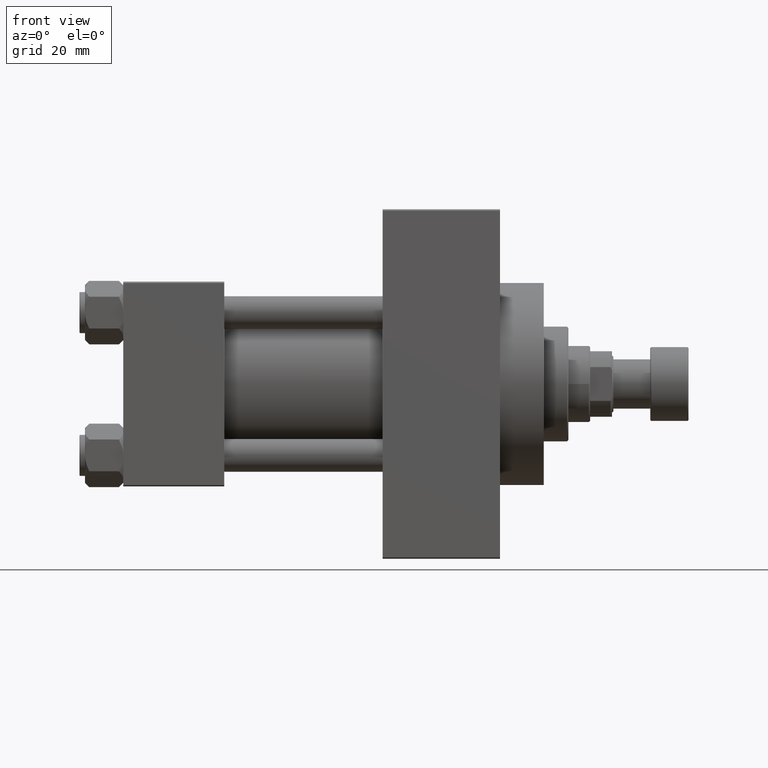
[diagram: clean part render]
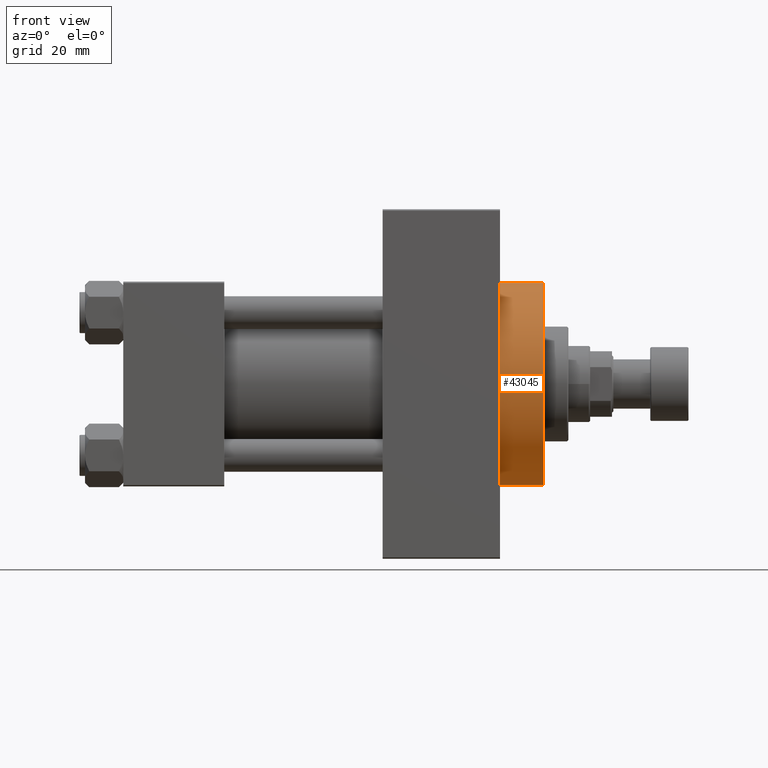
[diagram: same view with one face highlighted and labeled with its STEP entity id]
A machine part, front view. The second image highlights one B-rep face of the part: STEP entity #43045.
In plain terms, the highlighted cylindrical surface (partial cylindrical patch) has radius 37 mm, axis along (-1, -0, -0).
Its self-contained STEP definition (entity closure, byte-faithful):
#1393 = CARTESIAN_POINT ( 'NONE',  ( 154.0000000000000284, 0.000000000000000000, 0.000000000000000000 ) ) ;
#1501 = CARTESIAN_POINT ( 'NONE',  ( 154.0000000000000284, 0.000000000000000000, 0.000000000000000000 ) ) ;
#2500 = CIRCLE ( 'NONE', #12520, 37.00000000000000000 ) ;
#5131 = DIRECTION ( 'NONE',  ( 0.000000000000000000, 0.000000000000000000, -1.000000000000000000 ) ) ;
#7592 = ORIENTED_EDGE ( 'NONE', *, *, #32940, .T. ) ;
#8191 = ORIENTED_EDGE ( 'NONE', *, *, #10362, .T. ) ;
#8633 = CYLINDRICAL_SURFACE ( 'NONE', #40450, 37.00000000000000000 ) ;
#10140 = CARTESIAN_POINT ( 'NONE',  ( 154.0000000000000284, 0.000000000000000000, 37.00000000000000000 ) ) ;
#10362 = EDGE_CURVE ( 'NONE', #40232, #32352, #27346, .T. ) ;
#10610 = CARTESIAN_POINT ( 'NONE',  ( 154.0000000000000284, 4.531193156845206793E-15, -37.00000000000000000 ) ) ;
#10971 = VECTOR ( 'NONE', #26432, 1000.000000000000000 ) ;
#12520 = AXIS2_PLACEMENT_3D ( 'NONE', #39525, #43849, #21219 ) ;
#13770 = EDGE_CURVE ( 'NONE', #33734, #37773, #23288, .T. ) ;
#14120 = AXIS2_PLACEMENT_3D ( 'NONE', #1501, #30183, #5131 ) ;
#15187 = ORIENTED_EDGE ( 'NONE', *, *, #13770, .F. ) ;
#15293 = CARTESIAN_POINT ( 'NONE',  ( 154.0000000000000284, 0.000000000000000000, 37.00000000000000000 ) ) ;
#17309 = ORIENTED_EDGE ( 'NONE', *, *, #35501, .F. ) ;
#18427 = CARTESIAN_POINT ( 'NONE',  ( 138.0000000000000000, 0.000000000000000000, 37.00000000000000000 ) ) ;
#21219 = DIRECTION ( 'NONE',  ( 0.000000000000000000, 0.000000000000000000, -1.000000000000000000 ) ) ;
#23046 = CARTESIAN_POINT ( 'NONE',  ( 154.0000000000000284, 4.531193156845206793E-15, -37.00000000000000000 ) ) ;
#23288 = LINE ( 'NONE', #23046, #10971 ) ;
#23322 = FACE_OUTER_BOUND ( 'NONE', #36156, .T. ) ;
#24134 = CARTESIAN_POINT ( 'NONE',  ( 138.0000000000000000, 4.531193156845206793E-15, -37.00000000000000000 ) ) ;
#26432 = DIRECTION ( 'NONE',  ( -1.000000000000000000, -0.000000000000000000, -0.000000000000000000 ) ) ;
#27346 = LINE ( 'NONE', #15293, #29353 ) ;
#29353 = VECTOR ( 'NONE', #45422, 1000.000000000000000 ) ;
#30183 = DIRECTION ( 'NONE',  ( 1.000000000000000000, 0.000000000000000000, 0.000000000000000000 ) ) ;
#32352 = VERTEX_POINT ( 'NONE', #18427 ) ;
#32940 = EDGE_CURVE ( 'NONE', #32352, #37773, #2500, .T. ) ;
#33734 = VERTEX_POINT ( 'NONE', #10610 ) ;
#35501 = EDGE_CURVE ( 'NONE', #40232, #33734, #45683, .T. ) ;
#36156 = EDGE_LOOP ( 'NONE', ( #15187, #17309, #8191, #7592 ) ) ;
#37551 = DIRECTION ( 'NONE',  ( -1.000000000000000000, -0.000000000000000000, -0.000000000000000000 ) ) ;
#37773 = VERTEX_POINT ( 'NONE', #24134 ) ;
#39525 = CARTESIAN_POINT ( 'NONE',  ( 138.0000000000000000, 0.000000000000000000, 0.000000000000000000 ) ) ;
#40232 = VERTEX_POINT ( 'NONE', #10140 ) ;
#40450 = AXIS2_PLACEMENT_3D ( 'NONE', #1393, #37551, #44770 ) ;
#43045 = ADVANCED_FACE ( 'NONE', ( #23322 ), #8633, .T. ) ;
#43849 = DIRECTION ( 'NONE',  ( 1.000000000000000000, 0.000000000000000000, 0.000000000000000000 ) ) ;
#44770 = DIRECTION ( 'NONE',  ( 0.000000000000000000, 0.000000000000000000, 1.000000000000000000 ) ) ;
#45422 = DIRECTION ( 'NONE',  ( -1.000000000000000000, -0.000000000000000000, -0.000000000000000000 ) ) ;
#45683 = CIRCLE ( 'NONE', #14120, 37.00000000000000000 ) ;